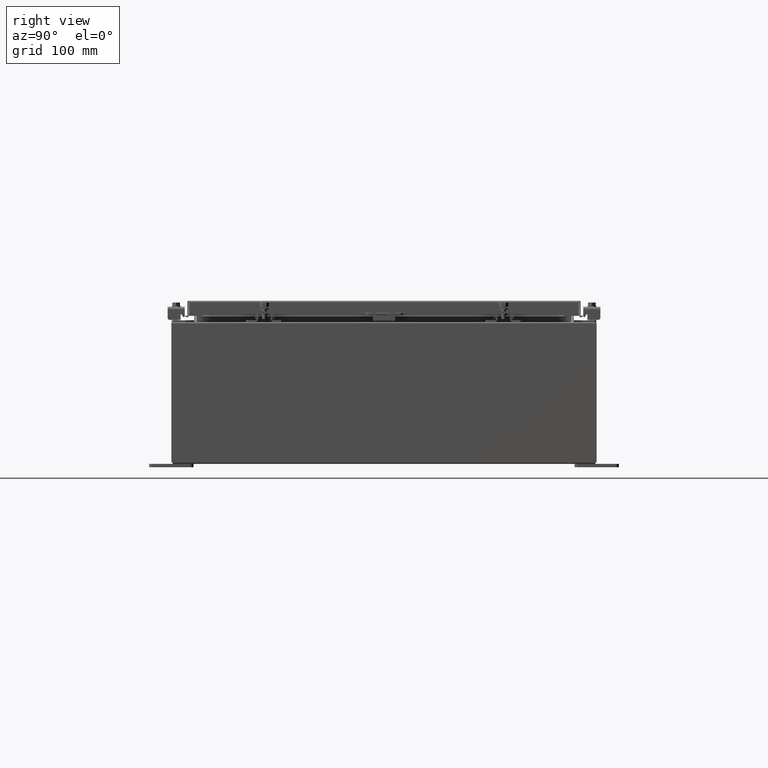
[diagram: clean part render]
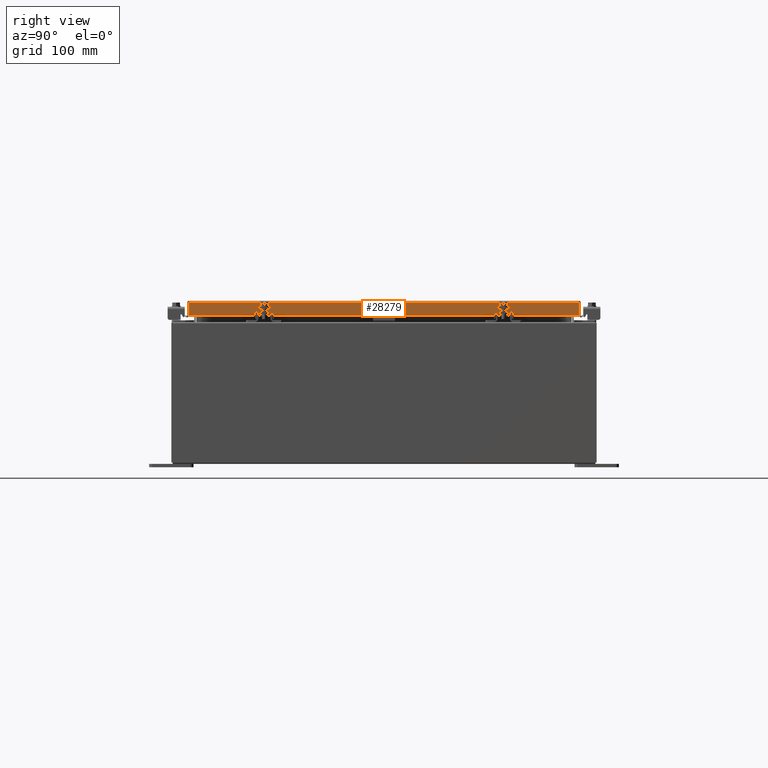
[diagram: same view with one face highlighted and labeled with its STEP entity id]
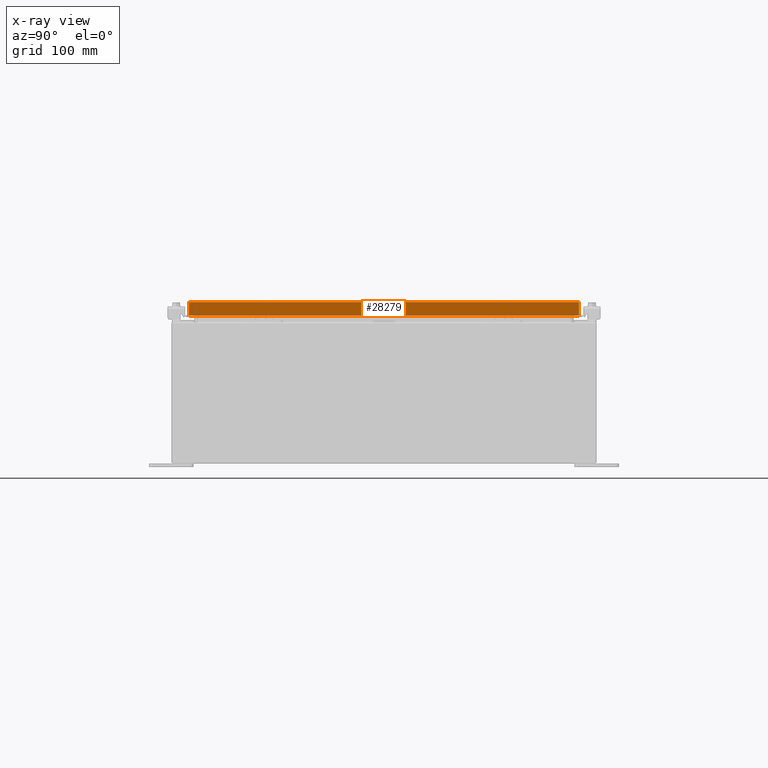
[diagram: x-ray of the same camera — body ghosted, the highlighted face saturated]
A machine part, right view. The second image highlights one B-rep face of the part: STEP entity #28279.
The next image is the same camera in x-ray: the body ghosted, the highlighted face saturated — about 0% of this face is hidden behind the body in this view.
In plain terms, the highlighted planar face has unit normal (1, 0, 0).
Its self-contained STEP definition (entity closure, byte-faithful):
#1202 = VERTEX_POINT ( 'NONE', #25425 ) ;
#1251 = CARTESIAN_POINT ( 'NONE',  ( 14.07800000000000300, 0.0000000000000000000, 3.994501956836086900E-014 ) ) ;
#1699 = LINE ( 'NONE', #30146, #2443 ) ;
#1979 = DIRECTION ( 'NONE',  ( 0.0000000000000000000, -1.000000000000000000, 0.0000000000000000000 ) ) ;
#2443 = VECTOR ( 'NONE', #12400, 39.37007874015748100 ) ;
#3866 = VECTOR ( 'NONE', #21899, 39.37007874015748100 ) ;
#4405 = EDGE_CURVE ( 'NONE', #20708, #1202, #12364, .T. ) ;
#4814 = DIRECTION ( 'NONE',  ( 0.0000000000000000000, -1.000000000000000000, 0.0000000000000000000 ) ) ;
#5028 = VERTEX_POINT ( 'NONE', #16092 ) ;
#6397 = DIRECTION ( 'NONE',  ( -2.818880942772360100E-015, -6.982962677686267500E-015, 1.000000000000000000 ) ) ;
#6560 = CARTESIAN_POINT ( 'NONE',  ( 14.07800000000000500, -11.09399999999999900, -0.8499999999999996400 ) ) ;
#7253 = VERTEX_POINT ( 'NONE', #30018 ) ;
#8558 = PLANE ( 'NONE',  #24385 ) ;
#8631 = CARTESIAN_POINT ( 'NONE',  ( 14.07800000000000500, -11.09399999999999900, -0.8499999999999996400 ) ) ;
#8665 = LINE ( 'NONE', #19926, #15468 ) ;
#9841 = VERTEX_POINT ( 'NONE', #27699 ) ;
#10388 = ORIENTED_EDGE ( 'NONE', *, *, #14543, .F. ) ;
#11126 = DIRECTION ( 'NONE',  ( 1.000000000000000000, 0.0000000000000000000, 2.818880942772360100E-015 ) ) ;
#12364 = LINE ( 'NONE', #6560, #25794 ) ;
#12400 = DIRECTION ( 'NONE',  ( 0.0000000000000000000, -1.000000000000000000, 0.0000000000000000000 ) ) ;
#14465 = VECTOR ( 'NONE', #16308, 39.37007874015748100 ) ;
#14543 = EDGE_CURVE ( 'NONE', #1202, #9841, #20371, .T. ) ;
#15014 = ORIENTED_EDGE ( 'NONE', *, *, #19095, .F. ) ;
#15148 = ORIENTED_EDGE ( 'NONE', *, *, #17266, .T. ) ;
#15299 = ORIENTED_EDGE ( 'NONE', *, *, #23839, .F. ) ;
#15468 = VECTOR ( 'NONE', #4814, 39.37007874015748100 ) ;
#15589 = FACE_OUTER_BOUND ( 'NONE', #31042, .T. ) ;
#16092 = CARTESIAN_POINT ( 'NONE',  ( 14.07800000000000500, 11.00515786437627400, -0.8499999999999996400 ) ) ;
#16308 = DIRECTION ( 'NONE',  ( 0.0000000000000000000, -1.000000000000000000, 0.0000000000000000000 ) ) ;
#17266 = EDGE_CURVE ( 'NONE', #30741, #9841, #1699, .T. ) ;
#18827 = ORIENTED_EDGE ( 'NONE', *, *, #19244, .T. ) ;
#19059 = CARTESIAN_POINT ( 'NONE',  ( 14.07800000000000300, -11.00515786437626900, -0.07469999999999978000 ) ) ;
#19095 = EDGE_CURVE ( 'NONE', #5028, #7253, #21137, .T. ) ;
#19244 = EDGE_CURVE ( 'NONE', #5028, #30741, #23875, .T. ) ;
#19926 = CARTESIAN_POINT ( 'NONE',  ( 14.07799999999999600, 10.25515786437627200, -0.8500000000000010900 ) ) ;
#20371 = LINE ( 'NONE', #19059, #26314 ) ;
#20708 = VERTEX_POINT ( 'NONE', #30223 ) ;
#21007 = ORIENTED_EDGE ( 'NONE', *, *, #4405, .F. ) ;
#21137 = LINE ( 'NONE', #8631, #14465 ) ;
#21899 = DIRECTION ( 'NONE',  ( -2.818880942772360100E-015, -6.982962677686267500E-015, 1.000000000000000000 ) ) ;
#23839 = EDGE_CURVE ( 'NONE', #7253, #20708, #8665, .T. ) ;
#23875 = LINE ( 'NONE', #24232, #3866 ) ;
#24232 = CARTESIAN_POINT ( 'NONE',  ( 14.07800000000000300, 11.00515786437626900, 1.167936261973458500E-013 ) ) ;
#24385 = AXIS2_PLACEMENT_3D ( 'NONE', #1251, #11126, #28911 ) ;
#25425 = CARTESIAN_POINT ( 'NONE',  ( 14.07800000000000500, -11.00515786437626400, -0.8499999999999996400 ) ) ;
#25794 = VECTOR ( 'NONE', #1979, 39.37007874015748100 ) ;
#25810 = CARTESIAN_POINT ( 'NONE',  ( 14.07800000000000300, 11.00515786437627100, -0.08770000000000007000 ) ) ;
#26314 = VECTOR ( 'NONE', #6397, 39.37007874015748100 ) ;
#27699 = CARTESIAN_POINT ( 'NONE',  ( 14.07800000000000300, -11.00515786437626900, -0.08770000000000007000 ) ) ;
#28279 = ADVANCED_FACE ( 'NONE', ( #15589 ), #8558, .T. ) ;
#28911 = DIRECTION ( 'NONE',  ( 2.818880942772360100E-015, 0.0000000000000000000, -1.000000000000000000 ) ) ;
#30018 = CARTESIAN_POINT ( 'NONE',  ( 14.07799999999999600, 10.25515786437627100, -0.8500000000000010900 ) ) ;
#30146 = CARTESIAN_POINT ( 'NONE',  ( 14.07800000000000300, 0.0000000000000000000, -0.08770000000000007000 ) ) ;
#30223 = CARTESIAN_POINT ( 'NONE',  ( 14.07799999999999600, -10.25515786437626400, -0.8500000000000010900 ) ) ;
#30741 = VERTEX_POINT ( 'NONE', #25810 ) ;
#31042 = EDGE_LOOP ( 'NONE', ( #10388, #21007, #15299, #15014, #18827, #15148 ) ) ;